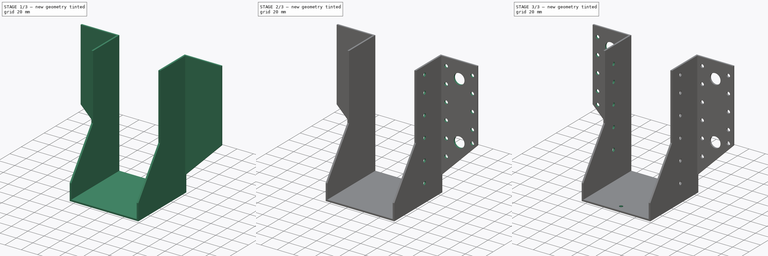
[diagram: build sequence overview — one tinted view per stage of 3, left to right]
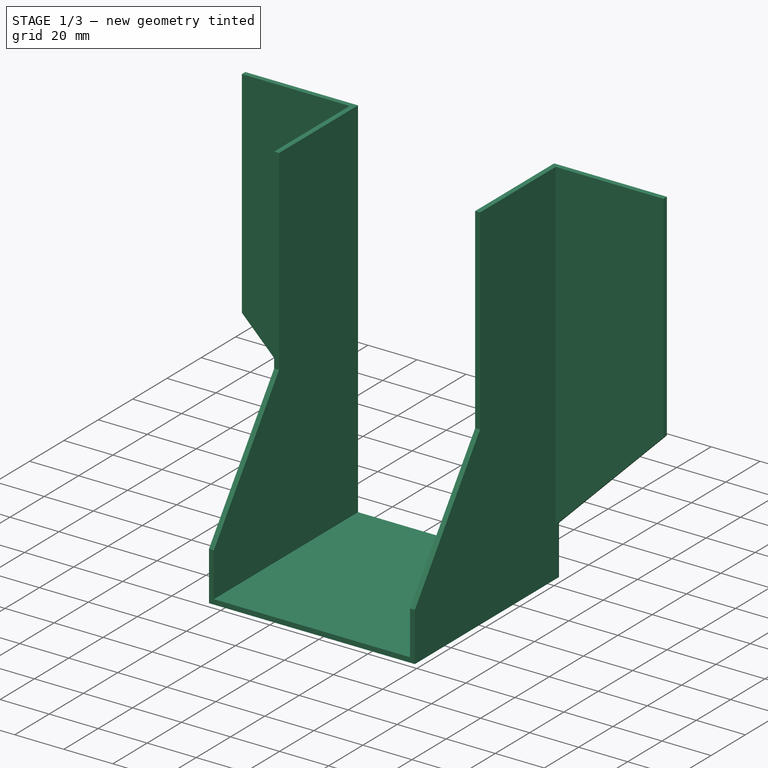
[diagram: stage 1 of 3 — iso view after this stage's code; geometry added in this stage tinted green]
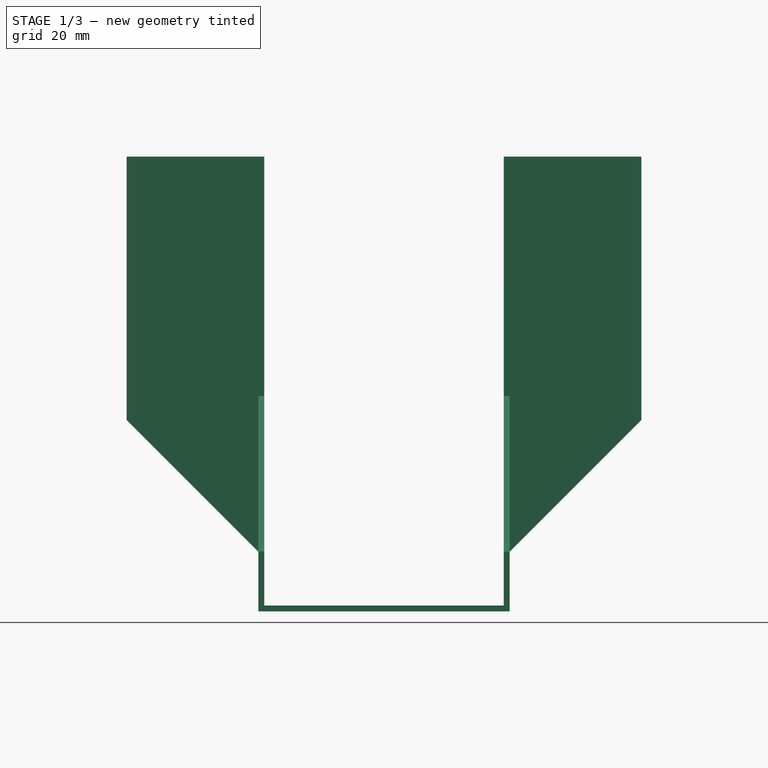
[diagram: stage 1 of 3 — front view after this stage's code; geometry added in this stage tinted green]
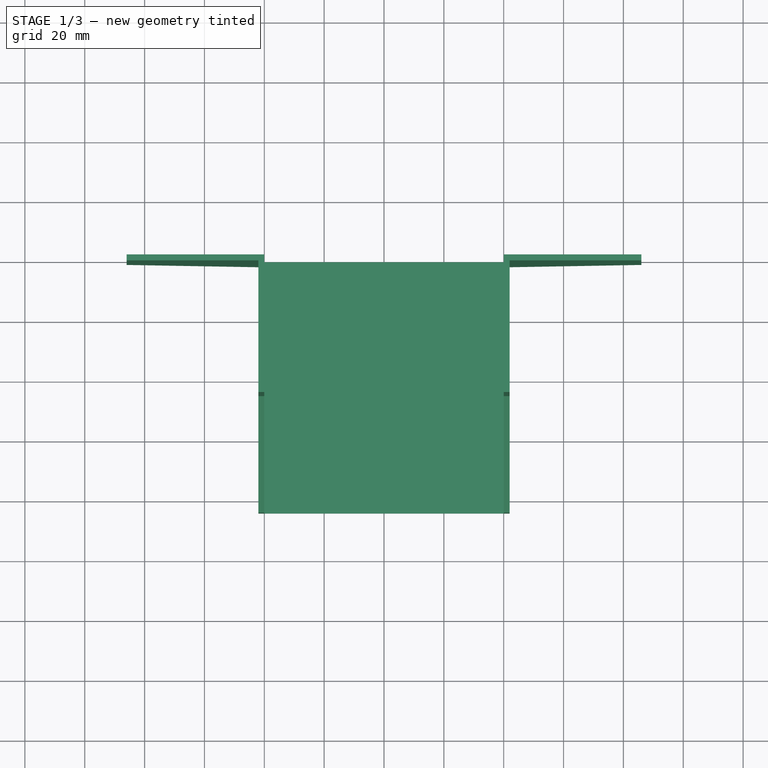
[diagram: stage 1 of 3 — top view after this stage's code; geometry added in this stage tinted green]
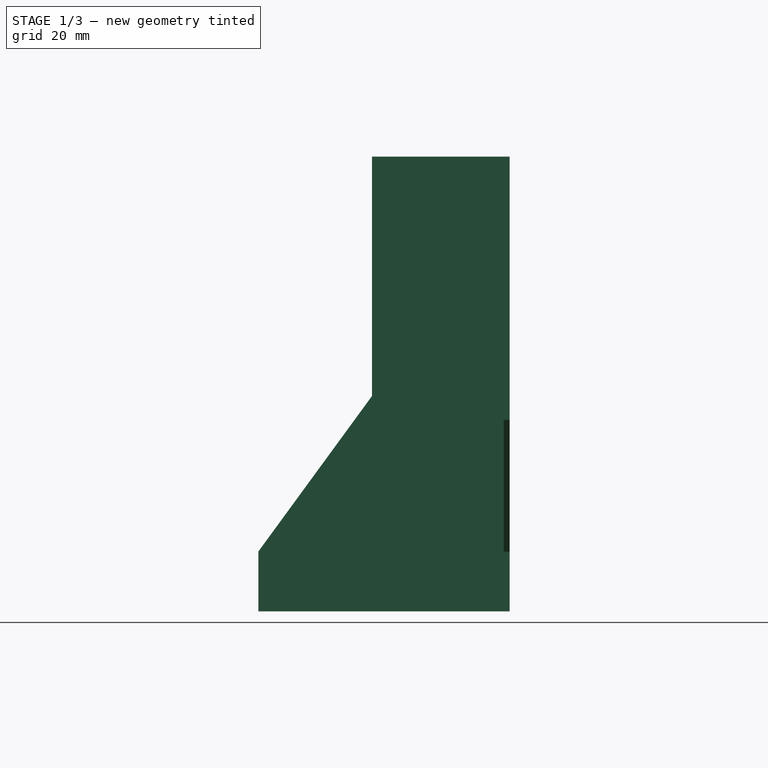
[diagram: stage 1 of 3 — right view after this stage's code; geometry added in this stage tinted green]
FCSTD DOCUMENT
Label: SAE380_80_2
License: CC-BY 3.0
LicenseURL: http://creativecommons.org/licenses/by/3.0/
objects: Sketcher::SketchObject×8, PartDesign::Pocket×6, PartDesign::Pad×2
note: 24 computed .brp shape members not serialized (recipe doc carries the construction recipe); baked Part::Feature solids carry a one-line shape summary decoded from their .brp

FEATURE [Sketcher::SketchObject] Sketch
  Placement = pos=(0,0,0) rot=(1,0,0;1.5708rad)
  sketch-geometry (12):
    g0: LineSegment StartX=40 StartY=-75 StartZ=0 EndX=40 EndY=75 EndZ=0
    g1: LineSegment StartX=40 StartY=75 StartZ=0 EndX=86 EndY=75 EndZ=0
    g2: LineSegment StartX=86 StartY=75 StartZ=0 EndX=86 EndY=-13 EndZ=0
    g3: LineSegment StartX=42 StartY=-77 StartZ=0 EndX=-42 EndY=-77 EndZ=0
    g4: LineSegment StartX=-86 StartY=-13 StartZ=0 EndX=-86 EndY=75 EndZ=0
    g5: LineSegment StartX=-86 StartY=75 StartZ=0 EndX=-40 EndY=75 EndZ=0
    g6: LineSegment StartX=-40 StartY=75 StartZ=0 EndX=-40 EndY=-75 EndZ=0
    g7: LineSegment StartX=-40 StartY=-75 StartZ=0 EndX=40 EndY=-75 EndZ=0
    g8: LineSegment StartX=42 StartY=-77 StartZ=0 EndX=42 EndY=-57 EndZ=0
    g9: LineSegment StartX=42 StartY=-57 StartZ=0 EndX=86 EndY=-13 EndZ=0
    g10: LineSegment StartX=-42 StartY=-77 StartZ=0 EndX=-42 EndY=-57 EndZ=0
    g11: LineSegment StartX=-42 StartY=-57 StartZ=0 EndX=-86 EndY=-13 EndZ=0
  constraints (35):
    c: Vertical(g0)
    c: Coincident(g0,g1)
    c: Horizontal(g1)
    c: Coincident(g1,g2)
    c: Vertical(g2)
    c: Horizontal(g3)
    c: Vertical(g4)
    c: Coincident(g4,g5)
    c: Horizontal(g5)
    c: Coincident(g5,g6)
    c: Vertical(g6)
    c: Coincident(g6,g7)
    c: Coincident(g7,g0)
    c: Distance(g1) = 46
    c: Distance(g0) = 150
    c: DistanceX(g-1,g0) = 40
    c: Equal(g1,g5)
    c: Symmetric(g5,g0,g-2)
    c: Equal(g6,g0)
    c: DistanceX(g0,g3) = 2
    c: DistanceY(g3,g0) = 2
    c: Symmetric(g3,g3,g-2)
    c: Symmetric(g2,g4,g-2)
    c: Symmetric(g0,g0,g-1)
    c: Coincident(g8,g3)
    c: Vertical(g8)
    c: Coincident(g9,g8)
    c: Distance(g8) = 20
    c: Coincident(g9,g2)
    c: Angle(g2,g9) = 2.35619
    c: Coincident(g10,g3)
    c: Vertical(g10)
    c: Coincident(g11,g10)
    c: Coincident(g11,g4)
    c: Equal(g10,g8)
FEATURE [PartDesign::Pad] Pad
  Length = 2
  Length2 = 100
  Placement = pos=(0,0,0) rot=(1,0,0;1.5708rad)
  Sketch = -> Sketch
  Type = 0
FEATURE [Sketcher::SketchObject] Sketch001
  ExternalGeometry = -> [Pad]
  Placement = pos=(0,-2,0) rot=(1,0,0;1.5708rad)
  Support = -> Pad [Face14]
  sketch-geometry (8):
    g0: LineSegment StartX=40 StartY=75 StartZ=0 EndX=42 EndY=75 EndZ=0
    g1: LineSegment StartX=42 StartY=75 StartZ=0 EndX=42 EndY=-77 EndZ=0
    g2: LineSegment StartX=42 StartY=-77 StartZ=0 EndX=-42 EndY=-77 EndZ=0
    g3: LineSegment StartX=-42 StartY=-77 StartZ=0 EndX=-42 EndY=75 EndZ=0
    g4: LineSegment StartX=-42 StartY=75 StartZ=0 EndX=-40 EndY=75 EndZ=0
    g5: LineSegment StartX=-40 StartY=75 StartZ=0 EndX=-40 EndY=-75 EndZ=0
    g6: LineSegment StartX=-40 StartY=-75 StartZ=0 EndX=40 EndY=-75 EndZ=0
    g7: LineSegment StartX=40 StartY=-75 StartZ=0 EndX=40 EndY=75 EndZ=0
  constraints (22):
    c: Coincident(g0,g1)
    c: Vertical(g1)
    c: Coincident(g1,g2)
    c: Horizontal(g2)
    c: Coincident(g2,g3)
    c: Vertical(g3)
    c: Coincident(g3,g4)
    c: Coincident(g4,g5)
    c: Vertical(g5)
    c: Coincident(g5,g6)
    c: Horizontal(g6)
    c: Coincident(g6,g7)
    c: Coincident(g7,g0)
    c: Vertical(g7)
    c: Horizontal(g0)
    c: Horizontal(g4)
    c: Distance(g0) = 2
    c: Equal(g0,g4)
    c: DistanceY(g6,g1) = -2
    c: Coincident(g-3,g0)
    c: Coincident(g4,g-4)
    c: Coincident(g-3,g6)
FEATURE [PartDesign::Pad] Pad001
  Length = 82
  Length2 = 100
  Placement = pos=(0,0,0) rot=(1,0,0;1.5708rad)
  Sketch = -> Sketch001
  Type = 0
FEATURE [Sketcher::SketchObject] Sketch002
  ExternalGeometry = -> [Pad001]
  Placement = pos=(42,0,0) rot=(0.707107,0,0.707107;3.14159rad)
  Support = -> Pad001 [Face16]
  sketch-geometry (4):
    g0: LineSegment StartX=-57 StartY=84 StartZ=0 EndX=-5.00005 EndY=46 EndZ=0
    g1: LineSegment StartX=-5.00005 StartY=46 StartZ=0 EndX=75 EndY=46 EndZ=0
    g2: LineSegment StartX=75 StartY=46 StartZ=0 EndX=75 EndY=84 EndZ=0
    g3: LineSegment StartX=75 StartY=84 StartZ=0 EndX=-57 EndY=84 EndZ=0
  constraints (11):
    c: Coincident(g0,g1)
    c: Horizontal(g1)
    c: Coincident(g1,g2)
    c: Vertical(g2)
    c: Coincident(g2,g3)
    c: Coincident(g3,g0)
    c: Horizontal(g3)
    c: PointOnObject(g0,g-3)
    c: Distance(g-3,g0) = 20
    c: Coincident(g-3,g2)
    c: Distance(g1,g-4) = 44
FEATURE [PartDesign::Pocket] Pocket
  Length = 5
  Placement = pos=(0,0,0) rot=(1,0,0;1.5708rad)
  Sketch = -> Sketch002
  Type = 1
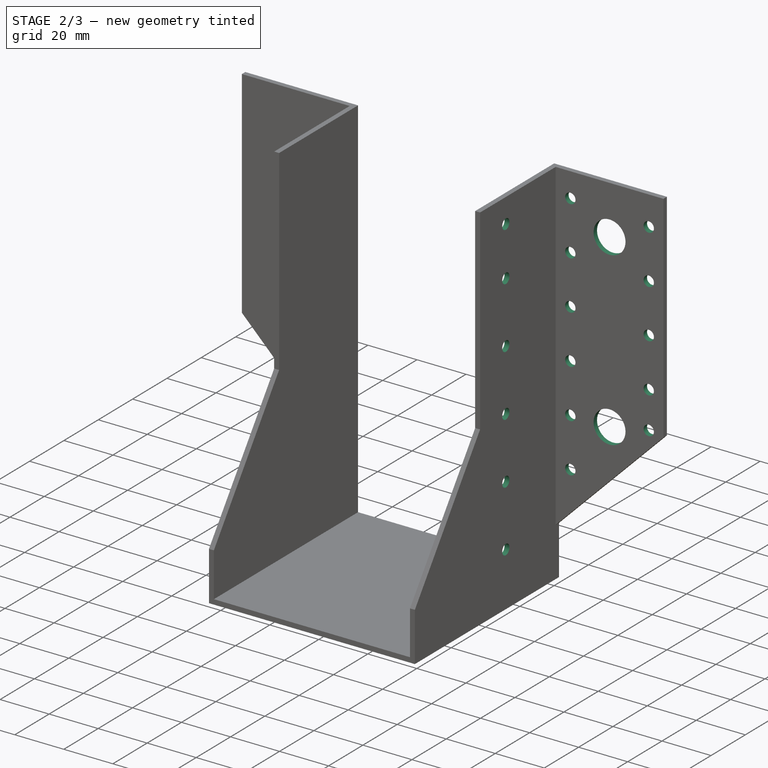
[diagram: stage 2 of 3 — iso view after this stage's code; geometry added in this stage tinted green]
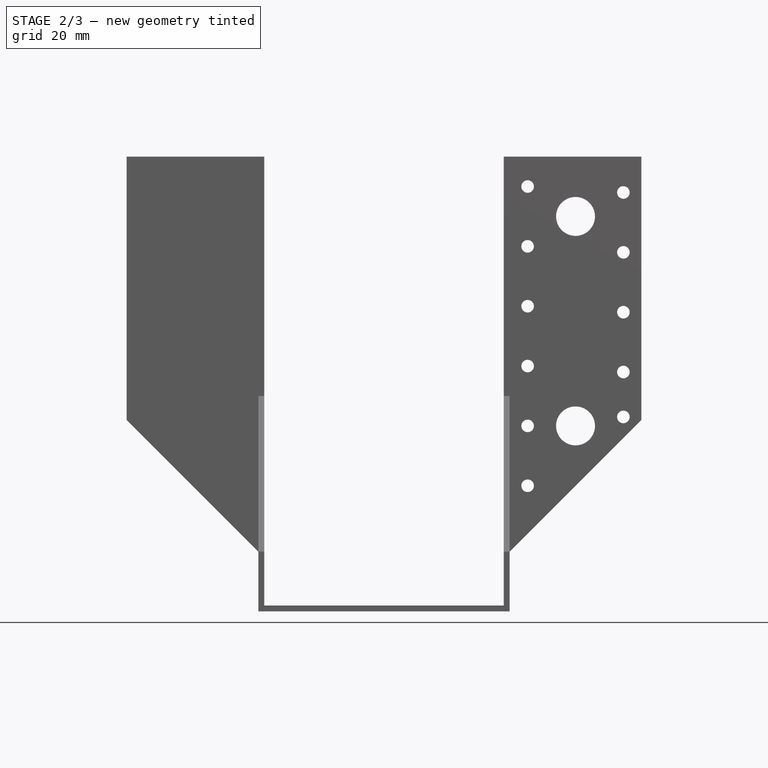
[diagram: stage 2 of 3 — front view after this stage's code; geometry added in this stage tinted green]
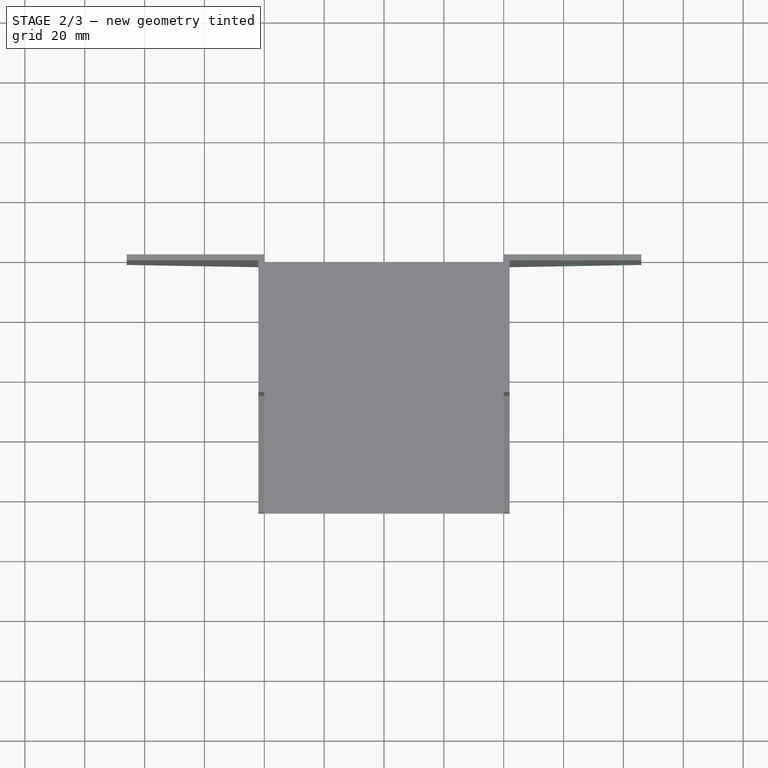
[diagram: stage 2 of 3 — top view after this stage's code; geometry added in this stage tinted green]
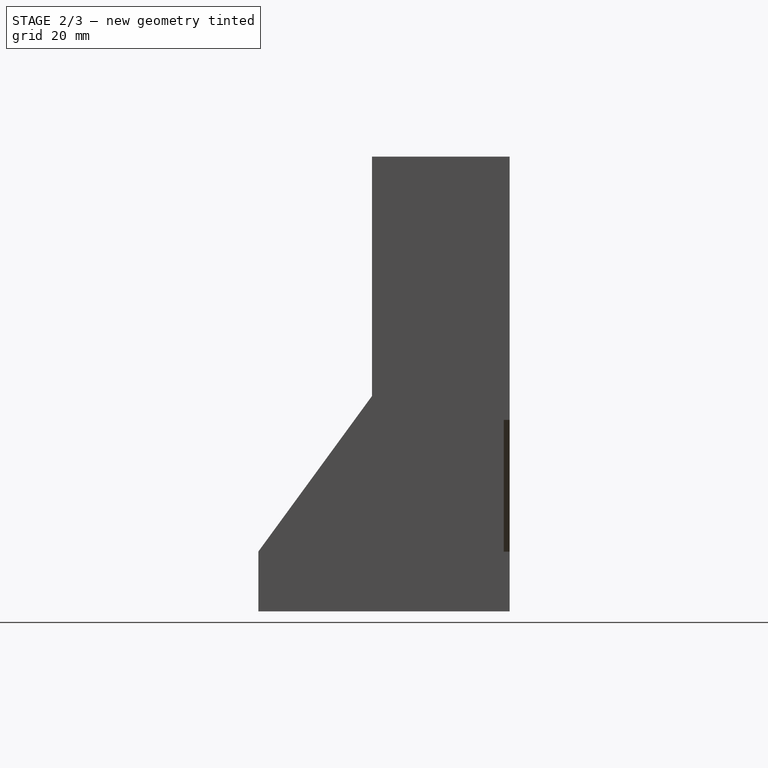
[diagram: stage 2 of 3 — right view after this stage's code; geometry added in this stage tinted green]
FEATURE [Sketcher::SketchObject] Sketch003
  ExternalGeometry = -> [Pocket]
  Placement = pos=(0,-2,0) rot=(1,0,0;1.5708rad)
  Support = -> Pocket [Face5]
  sketch-geometry (16):
    g0: Circle CenterX=64 CenterY=55 CenterZ=0 NormalX=0 NormalY=0 NormalZ=1 Radius=6.5
    g1: Circle CenterX=64 CenterY=-15 CenterZ=0 NormalX=0 NormalY=0 NormalZ=1 Radius=6.5
    g2: LineSegment [constr] StartX=64 StartY=75 StartZ=0 EndX=64 EndY=-15 EndZ=0
    g3: Circle CenterX=48 CenterY=65 CenterZ=0 NormalX=0 NormalY=0 NormalZ=1 Radius=2.1
    g4: Circle CenterX=80 CenterY=63 CenterZ=0 NormalX=0 NormalY=0 NormalZ=1 Radius=2.1
    g5: LineSegment [constr] StartX=48 StartY=75 StartZ=0 EndX=48 EndY=-35 EndZ=0
    g6: LineSegment [constr] StartX=80 StartY=75 StartZ=0 EndX=80 EndY=-12 EndZ=0
    g7: Circle CenterX=48 CenterY=45 CenterZ=0 NormalX=0 NormalY=0 NormalZ=1 Radius=2.1
    g8: Circle CenterX=48 CenterY=25 CenterZ=0 NormalX=0 NormalY=0 NormalZ=1 Radius=2.1
    g9: Circle CenterX=48 CenterY=5 CenterZ=0 NormalX=0 NormalY=0 NormalZ=1 Radius=2.1
    g10: Circle CenterX=48 CenterY=-15 CenterZ=0 NormalX=0 NormalY=0 NormalZ=1 Radius=2.1
    g11: Circle CenterX=48 CenterY=-35 CenterZ=0 NormalX=0 NormalY=0 NormalZ=1 Radius=2.1
    g12: Circle CenterX=80 CenterY=43 CenterZ=0 NormalX=0 NormalY=0 NormalZ=1 Radius=2.1
    g13: Circle CenterX=80 CenterY=23 CenterZ=0 NormalX=0 NormalY=0 NormalZ=1 Radius=2.1
    g14: Circle CenterX=80 CenterY=3 CenterZ=0 NormalX=0 NormalY=0 NormalZ=1 Radius=2.1
    g15: Circle CenterX=80 CenterY=-12 CenterZ=0 NormalX=0 NormalY=0 NormalZ=1 Radius=2.1
  constraints (48):
    c: Radius(g0) = 6.5
    c: DistanceY(g0,g1) = -70
    c: DistanceY(g0,g-3) = 20
    c: PointOnObject(g2,g-3)
    c: Coincident(g2,g1)
    c: Vertical(g2)
    c: PointOnObject(g0,g2)
    c: Symmetric(g-3,g-3,g2)
    c: Equal(g1,g0)
    c: Radius(g3) = 2.1
    c: PointOnObject(g5,g-3)
    c: Vertical(g5)
    c: PointOnObject(g6,g-3)
    c: Vertical(g6)
    c: PointOnObject(g3,g5)
    c: PointOnObject(g4,g6)
    c: PointOnObject(g7,g5)
    c: PointOnObject(g8,g5)
    c: PointOnObject(g9,g5)
    c: PointOnObject(g10,g5)
    c: Coincident(g11,g5)
    c: PointOnObject(g12,g6)
    c: PointOnObject(g13,g6)
    c: PointOnObject(g14,g6)
    c: Coincident(g15,g6)
    c: Equal(g3,g7)
    c: Equal(g7,g4)
    c: Equal(g4,g8)
    c: Equal(g8,g12)
    c: Equal(g12,g9)
    c: Equal(g9,g13)
    c: Equal(g13,g10)
    c: Equal(g10,g14)
    c: Equal(g14,g11)
    c: Equal(g11,g15)
    c: Distance(g2,g6) = 16
    c: Distance(g5,g2) = 16
    c: Distance(g5,g10) = 20
    c: Distance(g10,g9) = 20
    c: Distance(g9,g8) = 20
    c: Distance(g7,g8) = 20
    c: Distance(g7,g3) = 20
    c: Distance(g3,g5) = 10
    c: Distance(g6,g4) = 12
    c: Distance(g4,g12) = 20
    c: Distance(g12,g13) = 20
    c: Distance(g13,g14) = 20
    c: Distance(g14,g6) = 15
FEATURE [PartDesign::Pocket] Pocket001
  Length = 5
  Placement = pos=(0,0,0) rot=(1,0,0;1.5708rad)
  Sketch = -> Sketch003
  Type = 0
FEATURE [Sketcher::SketchObject] Sketch004
  ExternalGeometry = -> [Pocket001]
  Placement = pos=(42,0,0) rot=(0.707107,0,0.707107;3.14159rad)
  Support = -> Pocket001 [Face29]
  sketch-geometry (7):
    g0: Circle CenterX=65 CenterY=31 CenterZ=0 NormalX=0 NormalY=0 NormalZ=1 Radius=2.1
    g1: Circle CenterX=45 CenterY=31 CenterZ=0 NormalX=0 NormalY=0 NormalZ=1 Radius=2.1
    g2: Circle CenterX=20 CenterY=31 CenterZ=0 NormalX=0 NormalY=0 NormalZ=1 Radius=2.1
    g3: Circle CenterX=-5 CenterY=31 CenterZ=0 NormalX=0 NormalY=0 NormalZ=1 Radius=2.1
    g4: Circle CenterX=-30 CenterY=31 CenterZ=0 NormalX=0 NormalY=0 NormalZ=1 Radius=2.1
    g5: Circle CenterX=-55 CenterY=31 CenterZ=0 NormalX=0 NormalY=0 NormalZ=1 Radius=2.1
    g6: LineSegment [constr] StartX=-55 StartY=31 StartZ=0 EndX=75 EndY=31 EndZ=0
  constraints (21):
    c: Radius(g0) = 2.1
    c: Equal(g0,g1)
    c: Equal(g1,g2)
    c: Equal(g2,g3)
    c: Equal(g3,g4)
    c: Equal(g4,g5)
    c: Horizontal(g6)
    c: PointOnObject(g0,g6)
    c: PointOnObject(g1,g6)
    c: PointOnObject(g2,g6)
    c: PointOnObject(g4,g6)
    c: PointOnObject(g3,g6)
    c: DistanceX(g1,g0) = 20
    c: DistanceX(g2,g1) = 25
    c: DistanceX(g3,g2) = 25
    c: DistanceX(g4,g3) = 25
    c: DistanceX(g5,g4) = 25
    c: Coincident(g6,g5)
    c: PointOnObject(g6,g-3)
    c: DistanceX(g0,g6) = 10
    c: DistanceY(g6,g-3) = 15
FEATURE [PartDesign::Pocket] Pocket002
  Length = 2
  Placement = pos=(0,0,0) rot=(1,0,0;1.5708rad)
  Sketch = -> Sketch004
  Type = 0
  UpToFace = -> Pocket001 [Face30]
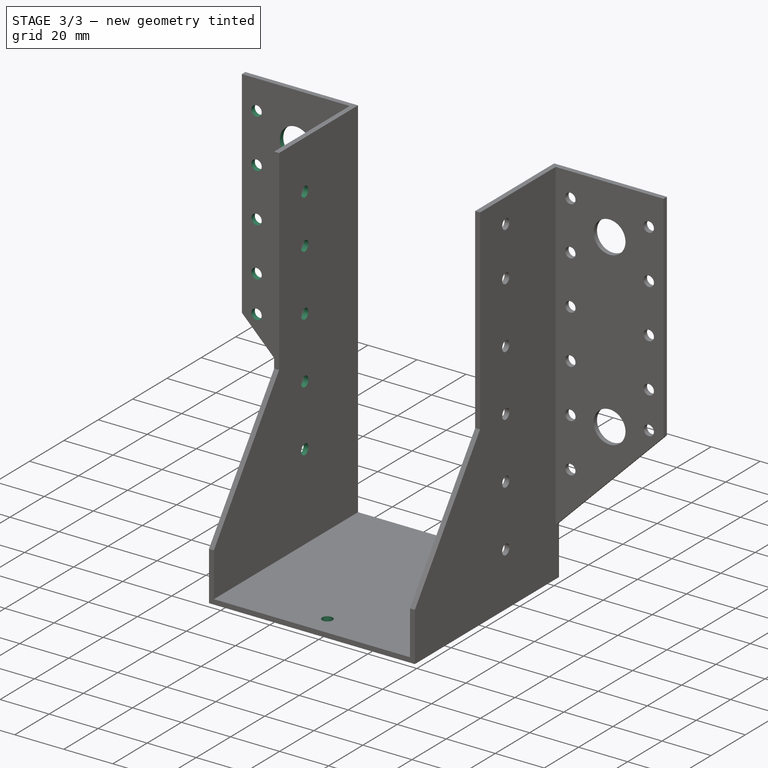
[diagram: stage 3 of 3 — iso view after this stage's code; geometry added in this stage tinted green]
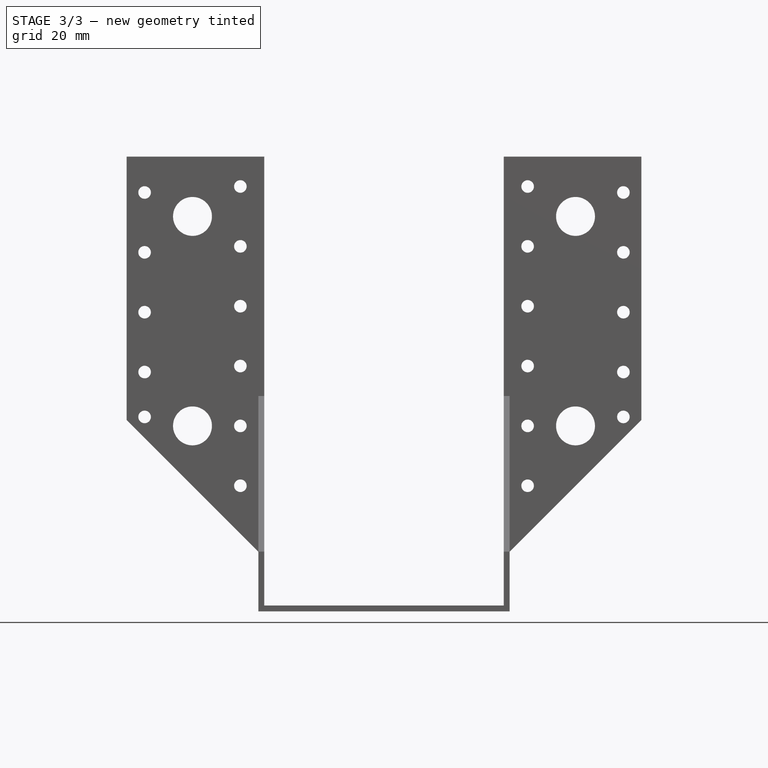
[diagram: stage 3 of 3 — front view after this stage's code; geometry added in this stage tinted green]
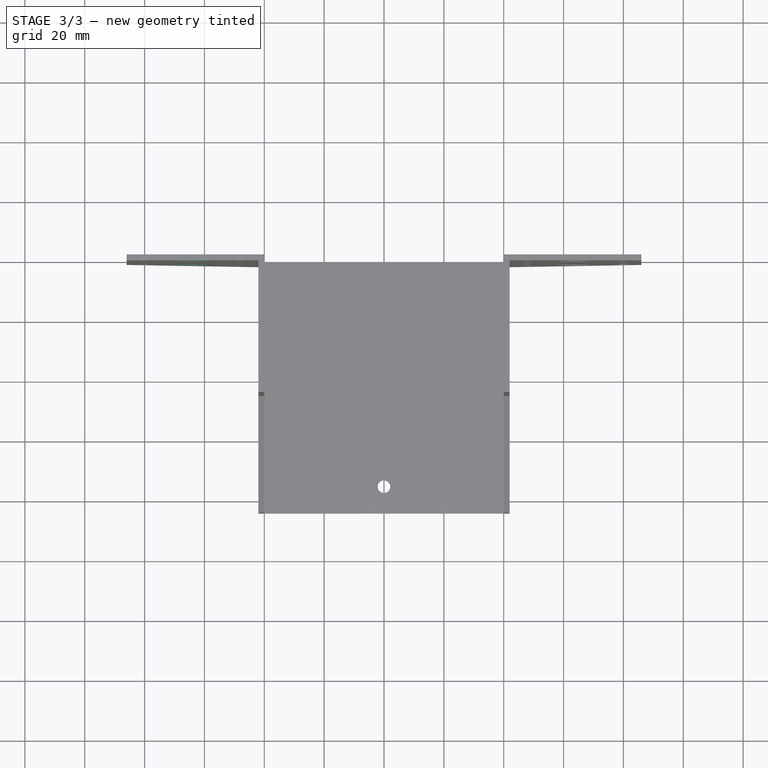
[diagram: stage 3 of 3 — top view after this stage's code; geometry added in this stage tinted green]
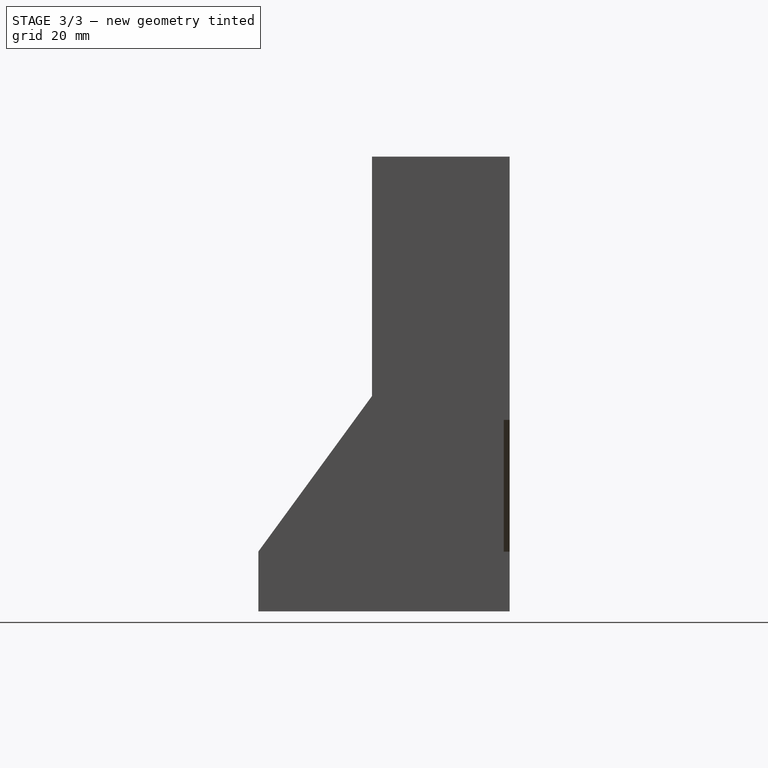
[diagram: stage 3 of 3 — right view after this stage's code; geometry added in this stage tinted green]
FEATURE [Sketcher::SketchObject] Sketch003001
  ExternalGeometry = -> [Pocket002]
  Placement = pos=(0,-2,0) rot=(1,0,0;1.5708rad)
  Support = -> Pocket002 [Face36]
  sketch-geometry (17):
    g0: Circle CenterX=-64 CenterY=55 CenterZ=0 NormalX=0 NormalY=0 NormalZ=1 Radius=6.5
    g1: Circle CenterX=-64 CenterY=-15 CenterZ=0 NormalX=0 NormalY=0 NormalZ=1 Radius=6.5
    g2: LineSegment [constr] StartX=-64 StartY=75 StartZ=0 EndX=-64 EndY=-15 EndZ=0
    g3: Circle CenterX=-48 CenterY=65 CenterZ=0 NormalX=0 NormalY=0 NormalZ=1 Radius=2.1
    g4: Circle CenterX=-80 CenterY=63 CenterZ=0 NormalX=0 NormalY=0 NormalZ=1 Radius=2.1
    g5: LineSegment [constr] StartX=-48 StartY=75 StartZ=0 EndX=-48 EndY=-35 EndZ=0
    g6: LineSegment [constr] StartX=-80 StartY=75 StartZ=0 EndX=-80 EndY=-12 EndZ=0
    g7: Circle CenterX=-48 CenterY=45 CenterZ=0 NormalX=0 NormalY=0 NormalZ=1 Radius=2.1
    g8: Circle CenterX=-48 CenterY=25 CenterZ=0 NormalX=0 NormalY=0 NormalZ=1 Radius=2.1
    g9: Circle CenterX=-48 CenterY=5 CenterZ=0 NormalX=0 NormalY=0 NormalZ=1 Radius=2.1
    g10: Circle CenterX=-48 CenterY=-15 CenterZ=0 NormalX=0 NormalY=0 NormalZ=1 Radius=2.1
    g11: Circle CenterX=-48 CenterY=-35 CenterZ=0 NormalX=0 NormalY=0 NormalZ=1 Radius=2.1
    g12: Circle CenterX=-80 CenterY=43 CenterZ=0 NormalX=0 NormalY=0 NormalZ=1 Radius=2.1
    g13: Circle CenterX=-80 CenterY=23 CenterZ=0 NormalX=0 NormalY=0 NormalZ=1 Radius=2.1
    g14: Circle CenterX=-80 CenterY=3 CenterZ=0 NormalX=0 NormalY=0 NormalZ=1 Radius=2.1
    g15: Circle CenterX=-80 CenterY=-12 CenterZ=0 NormalX=0 NormalY=0 NormalZ=1 Radius=2.1
    g16: LineSegment [constr] StartX=-86 StartY=75 StartZ=0 EndX=-42 EndY=75 EndZ=0
  constraints (50):
    c: Radius(g0) = 6.5
    c: DistanceY(g0,g1) = -70
    c: Coincident(g2,g1)
    c: Vertical(g2)
    c: PointOnObject(g0,g2)
    c: Equal(g1,g0)
    c: Radius(g3) = 2.1
    c: Vertical(g5)
    c: Vertical(g6)
    c: PointOnObject(g3,g5)
    c: PointOnObject(g4,g6)
    c: PointOnObject(g7,g5)
    c: PointOnObject(g8,g5)
    c: PointOnObject(g9,g5)
    c: PointOnObject(g10,g5)
    c: Coincident(g11,g5)
    c: PointOnObject(g12,g6)
    c: PointOnObject(g13,g6)
    c: PointOnObject(g14,g6)
    c: Coincident(g15,g6)
    c: Equal(g3,g7)
    c: Equal(g7,g4)
    c: Equal(g4,g8)
    c: Equal(g8,g12)
    c: Equal(g12,g9)
    c: Equal(g9,g13)
    c: Equal(g13,g10)
    c: Equal(g10,g14)
    c: Equal(g14,g11)
    c: Equal(g11,g15)
    c: Distance(g5,g10) = 20
    c: Distance(g10,g9) = 20
    c: Distance(g9,g8) = 20
    c: Distance(g7,g8) = 20
    c: Distance(g7,g3) = 20
    c: Distance(g3,g5) = 10
    c: Distance(g6,g4) = 12
    c: Distance(g4,g12) = 20
    c: Distance(g12,g13) = 20
    c: Distance(g13,g14) = 20
    c: Distance(g14,g6) = 15
    c: PointOnObject(g2,g16)
    c: PointOnObject(g6,g16)
    c: PointOnObject(g5,g16)
    c: DistanceY(g2,g0) = -20
    c: Coincident(g16,g-3)
    c: Coincident(g16,g-3)
    c: Symmetric(g16,g16,g2)
    c: DistanceX(g2,g5) = 16
    c: DistanceX(g6,g2) = 16
FEATURE [PartDesign::Pocket] Pocket003
  Length = 2
  Placement = pos=(0,0,0) rot=(1,0,0;1.5708rad)
  Sketch = -> Sketch003001
  Type = 0
FEATURE [Sketcher::SketchObject] Sketch004001
  ExternalGeometry = -> [Pocket001]
  Placement = pos=(-40,0,0) rot=(0.707107,0,0.707107;3.14159rad)
  Support = -> Pocket003 [Face48]
  sketch-geometry (6):
    g0: Circle CenterX=55 CenterY=31 CenterZ=0 NormalX=0 NormalY=0 NormalZ=1 Radius=2.1
    g1: Circle CenterX=35 CenterY=31 CenterZ=0 NormalX=0 NormalY=0 NormalZ=1 Radius=2.1
    g2: Circle CenterX=10 CenterY=31 CenterZ=0 NormalX=0 NormalY=0 NormalZ=1 Radius=2.1
    g3: Circle CenterX=-15 CenterY=31 CenterZ=0 NormalX=0 NormalY=0 NormalZ=1 Radius=2.1
    g4: Circle CenterX=-40 CenterY=31 CenterZ=0 NormalX=0 NormalY=0 NormalZ=1 Radius=2.1
    g5: LineSegment [constr] StartX=-40 StartY=31 StartZ=0 EndX=75 EndY=31 EndZ=0
  constraints (19):
    c: Radius(g0) = 2.1
    c: Equal(g0,g1)
    c: Equal(g1,g2)
    c: Equal(g2,g3)
    c: Equal(g3,g4)
    c: Horizontal(g5)
    c: PointOnObject(g0,g5)
    c: PointOnObject(g1,g5)
    c: PointOnObject(g2,g5)
    c: PointOnObject(g4,g5)
    c: PointOnObject(g3,g5)
    c: DistanceX(g1,g0) = 20
    c: DistanceX(g2,g1) = 25
    c: DistanceX(g3,g2) = 25
    c: DistanceX(g4,g3) = 25
    c: PointOnObject(g5,g-3)
    c: DistanceX(g0,g5) = 20
    c: DistanceY(g5,g-3) = 15
    c: Coincident(g5,g4)
FEATURE [PartDesign::Pocket] Pocket004
  Length = 2
  Placement = pos=(0,0,0) rot=(1,0,0;1.5708rad)
  Sketch = -> Sketch004001
  Type = 0
FEATURE [Sketcher::SketchObject] Sketch004002
  Placement = pos=(0,0,-75) rot=(0,0,1;3.14159rad)
  Support = -> Pocket004 [Face46]
  sketch-geometry (1):
    g0: Circle CenterX=0 CenterY=75 CenterZ=0 NormalX=0 NormalY=0 NormalZ=1 Radius=2.1
  constraints (3):
    c: PointOnObject(g0,g-2)
    c: Radius(g0) = 2.1
    c: Distance(g-1,g0) = 75
FEATURE [PartDesign::Pocket] Pocket005
  Length = 2
  Placement = pos=(0,0,0) rot=(1,0,0;1.5708rad)
  Sketch = -> Sketch004002
  Type = 0
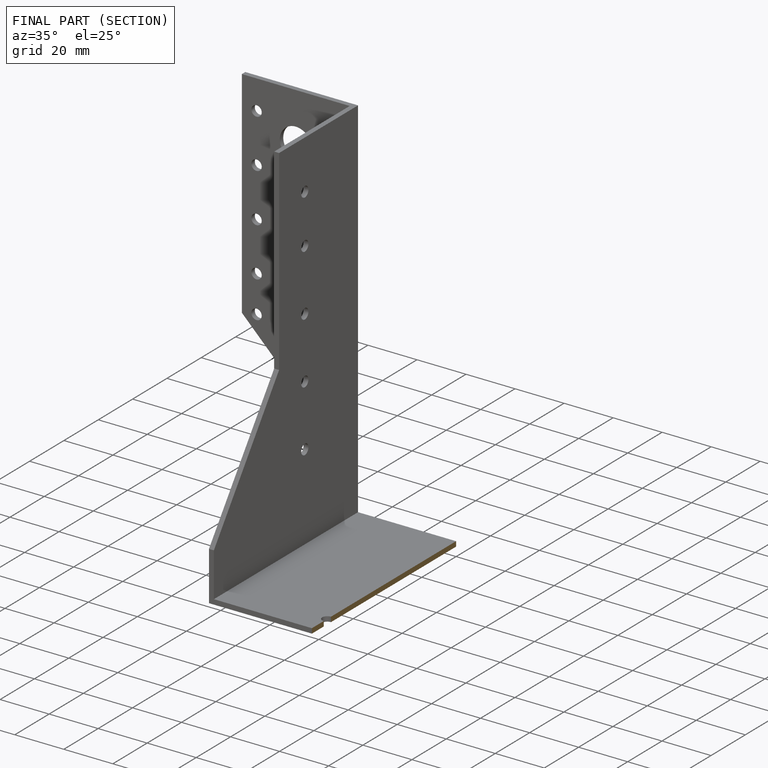
[diagram: finished part — half-section view (interior)]
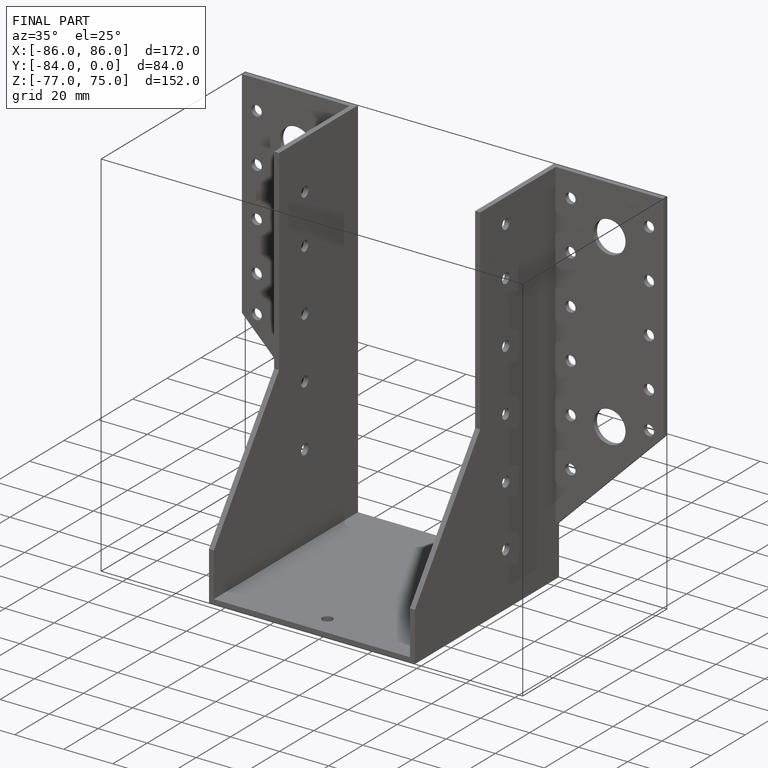
[diagram: finished part — iso view with bounding-box wireframe]
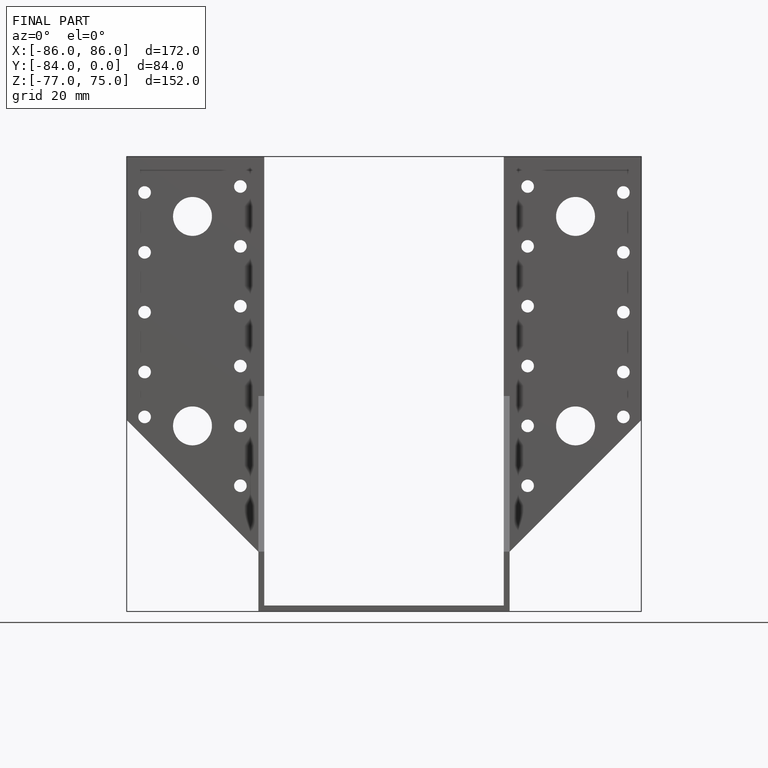
[diagram: finished part — front view with bounding-box wireframe]
